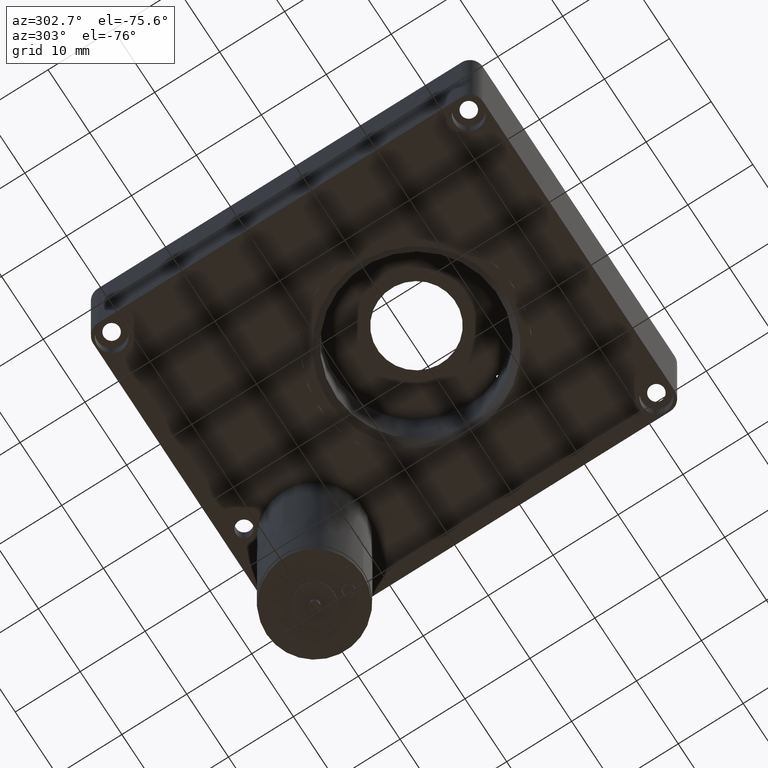
[diagram: clean part render]
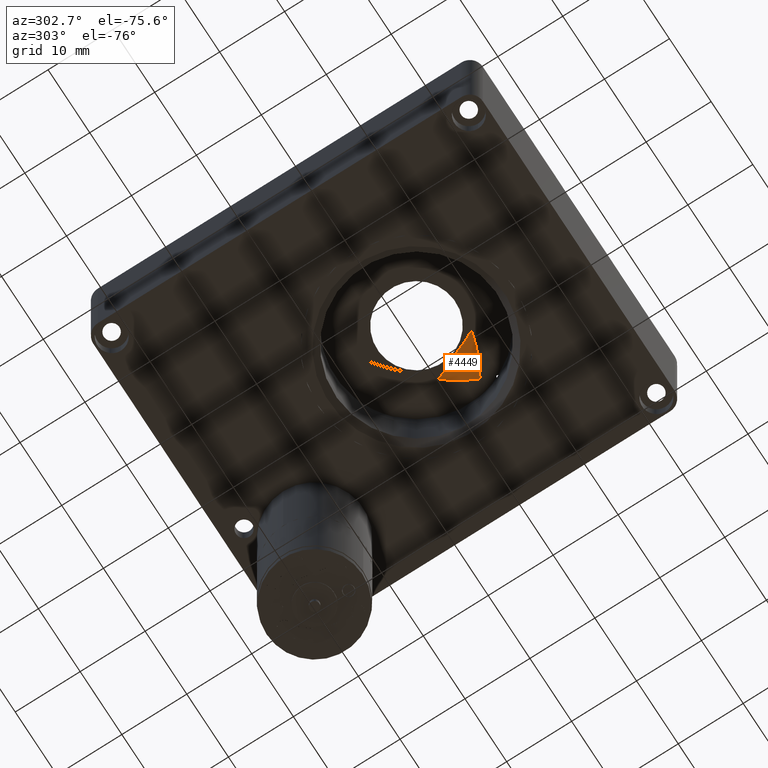
[diagram: same view with one face highlighted and labeled with its STEP entity id]
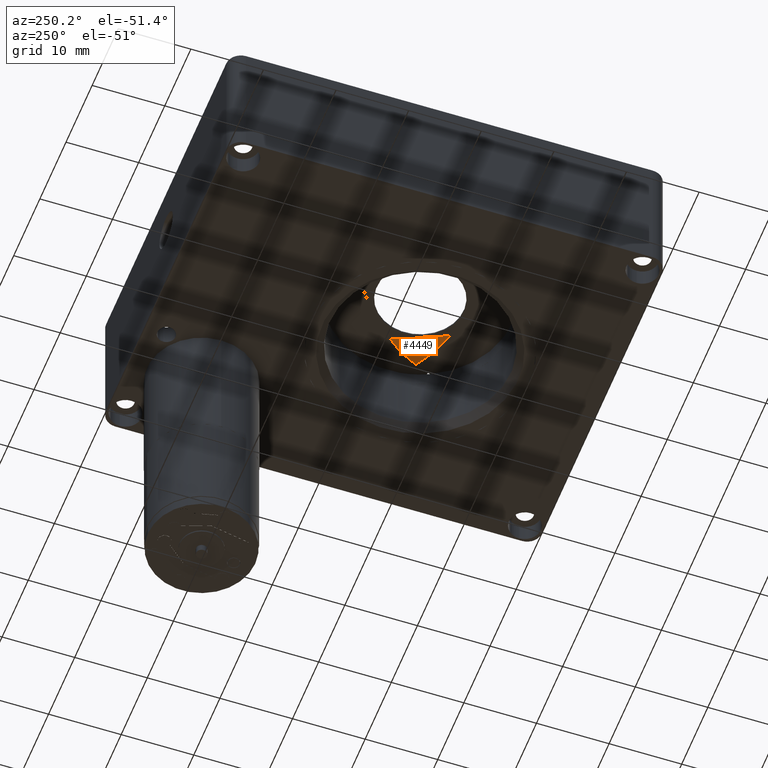
[diagram: same view with one face highlighted and labeled with its STEP entity id]
A machine part, auxiliary view. The second image highlights one B-rep face of the part: STEP entity #4449.
A second angle (auxiliary view) of the same face is appended — the face is thin or edge-on in the first view.
In plain terms, the highlighted planar face has unit normal (0, -0, -1).
Its self-contained STEP definition (entity closure, byte-faithful):
#96 = CIRCLE ( 'NONE', #5609, 20.00000000000000400 ) ;
#146 = CARTESIAN_POINT ( 'NONE',  ( 30.62743528368577400, 22.17752110544609000, 8.000000000000000000 ) ) ;
#500 = DIRECTION ( 'NONE',  ( -8.155362614957078500E-017, 2.017289381376921000E-017, 1.000000000000000000 ) ) ;
#817 = EDGE_LOOP ( 'NONE', ( #3682, #6010, #3689, #4102 ) ) ;
#1121 = CARTESIAN_POINT ( 'NONE',  ( 17.17350941451934100, 13.67024884650452800, 7.999999999999998200 ) ) ;
#1242 = EDGE_CURVE ( 'NONE', #2134, #7215, #4207, .T. ) ;
#1467 = AXIS2_PLACEMENT_3D ( 'NONE', #4853, #500, #4300 ) ;
#1595 = DIRECTION ( 'NONE',  ( -8.155362614957078500E-017, 2.017289381376921000E-017, 1.000000000000000000 ) ) ;
#1651 = AXIS2_PLACEMENT_3D ( 'NONE', #3816, #3261, #6586 ) ;
#1859 = AXIS2_PLACEMENT_3D ( 'NONE', #4661, #1902, #5745 ) ;
#1902 = DIRECTION ( 'NONE',  ( 8.155362614957078500E-017, -2.017289381376921000E-017, -1.000000000000000000 ) ) ;
#2134 = VERTEX_POINT ( 'NONE', #5039 ) ;
#2379 = CARTESIAN_POINT ( 'NONE',  ( 35.40604459534397100, 21.89062966979927400, 8.000000000000000000 ) ) ;
#2393 = AXIS2_PLACEMENT_3D ( 'NONE', #1121, #1595, #2746 ) ;
#2746 = DIRECTION ( 'NONE',  ( 0.2862966125098039800, 0.9581410385039413900, 0.0000000000000000000 ) ) ;
#3261 = DIRECTION ( 'NONE',  ( -8.155362614957078500E-017, 2.017289381376921000E-017, 1.000000000000000000 ) ) ;
#3372 = DIRECTION ( 'NONE',  ( 0.2862966125098174700, 0.9581410385039372800, 0.0000000000000000000 ) ) ;
#3682 = ORIENTED_EDGE ( 'NONE', *, *, #1242, .F. ) ;
#3689 = ORIENTED_EDGE ( 'NONE', *, *, #6492, .T. ) ;
#3816 = CARTESIAN_POINT ( 'NONE',  ( 13.38589581813329200, 32.31306829628863400, 7.999999999999998200 ) ) ;
#3896 = EDGE_CURVE ( 'NONE', #2134, #5095, #96, .T. ) ;
#3908 = VERTEX_POINT ( 'NONE', #4496 ) ;
#4102 = ORIENTED_EDGE ( 'NONE', *, *, #6565, .F. ) ;
#4207 = CIRCLE ( 'NONE', #1467, 20.00000000000017800 ) ;
#4300 = DIRECTION ( 'NONE',  ( 0.2862966125098005400, 0.9581410385039425000, 0.0000000000000000000 ) ) ;
#4449 = ADVANCED_FACE ( 'NONE', ( #4940 ), #6256, .T. ) ;
#4496 = CARTESIAN_POINT ( 'NONE',  ( 32.52078786270026000, 26.49448544109375400, 8.000000000000000000 ) ) ;
#4655 = CIRCLE ( 'NONE', #2393, 19.99999999999999600 ) ;
#4661 = CARTESIAN_POINT ( 'NONE',  ( 25.00000000000000400, 25.00000000000000000, 8.000000000000000000 ) ) ;
#4853 = CARTESIAN_POINT ( 'NONE',  ( 24.67230324980179600, 38.76625696856968500, 7.999999999999998200 ) ) ;
#4940 = FACE_OUTER_BOUND ( 'NONE', #817, .T. ) ;
#5039 = CARTESIAN_POINT ( 'NONE',  ( 29.33836982997768000, 19.31817678904110000, 8.000000000000000000 ) ) ;
#5053 = CARTESIAN_POINT ( 'NONE',  ( 11.80624774023642400, 28.94234922257567200, 7.999999999999998200 ) ) ;
#5095 = VERTEX_POINT ( 'NONE', #146 ) ;
#5570 = DIRECTION ( 'NONE',  ( -8.155362614957078500E-017, 2.017289381376921000E-017, 1.000000000000000000 ) ) ;
#5609 = AXIS2_PLACEMENT_3D ( 'NONE', #5053, #5570, #3372 ) ;
#5745 = DIRECTION ( 'NONE',  ( 0.2862966125098055900, 0.9581410385039408300, 4.020049476158662000E-018 ) ) ;
#6010 = ORIENTED_EDGE ( 'NONE', *, *, #3896, .T. ) ;
#6126 = CIRCLE ( 'NONE', #1651, 20.00000000000000000 ) ;
#6256 = PLANE ( 'NONE',  #1859 ) ;
#6492 = EDGE_CURVE ( 'NONE', #5095, #3908, #6126, .T. ) ;
#6565 = EDGE_CURVE ( 'NONE', #7215, #3908, #4655, .T. ) ;
#6586 = DIRECTION ( 'NONE',  ( 0.2862966125097885000, 0.9581410385039458300, 0.0000000000000000000 ) ) ;
#7215 = VERTEX_POINT ( 'NONE', #2379 ) ;